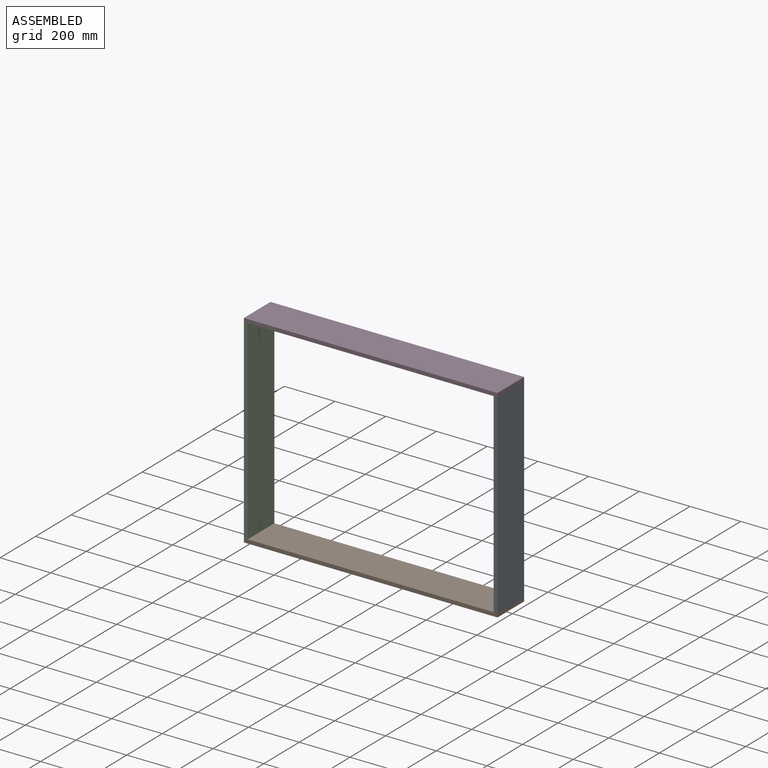
[diagram: assembled view]
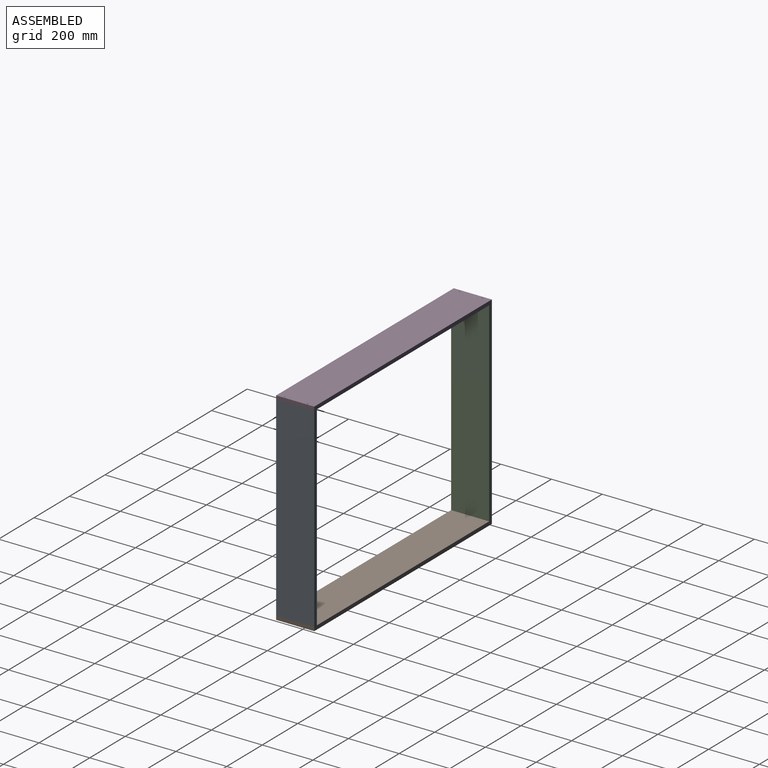
[diagram: assembled view, second angle]
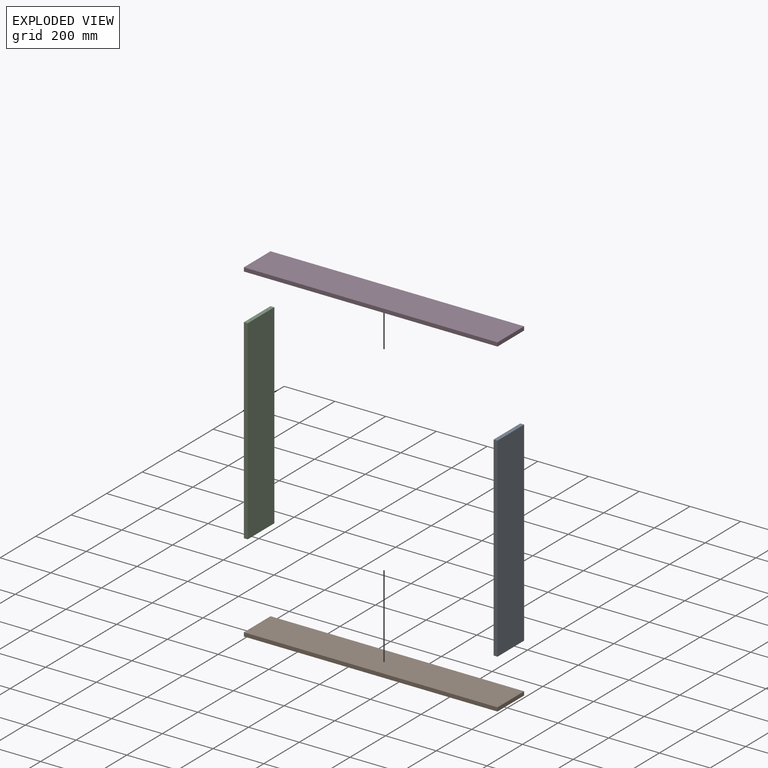
[diagram: exploded view]
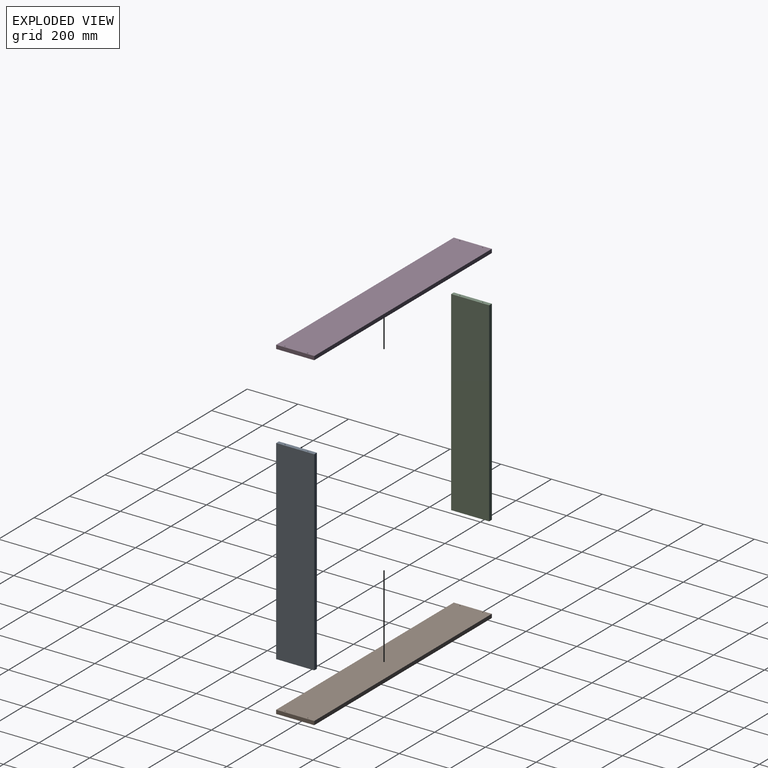
[diagram: exploded view, second angle]
ASSEMBLY  parts=4 mates=3
PART A: 14 faces, bbox 15x150x770 mm
  f0: plane 770x15mm, normal (0,-1,0), area 11550mm2, adj f1,f3,f4,f5
  f1: plane 150x15mm, normal (0,0,-1), area 2230.8mm2, adj f0,f2,f4,f5,f11,f13
  f2: plane 770x15mm, normal (0,1,0), area 11550mm2, adj f1,f3,f4,f5
  f3: plane 150x15mm, normal (0,0,1), area 2230.8mm2, adj f0,f2,f4,f5,f7,f9
  f4: plane 770x150mm, normal (1,0,0), area 115500mm2, adj f0,f1,f2,f3
  f5: plane 770x150mm, normal (-1,0,0), area 115500mm2, adj f0,f1,f2,f3
  f6: cone r=0mm half-angle=59deg, axis (0,0,1), area 11.2mm2, adj f7
  f7: cylinder r=1.75mm len=12mm, axis (0,0,1), area 131.9mm2, adj f3,f6
  f8: cone r=0mm half-angle=59deg, axis (0,0,1), area 11.2mm2, adj f9
  f9: cylinder r=1.75mm len=12mm, axis (0,0,1), area 131.9mm2, adj f3,f8
  f10: cone r=0mm half-angle=59deg, axis (0,0,-1), area 11.2mm2, adj f11
  f11: cylinder r=1.75mm len=12mm, axis (0,0,-1), area 131.9mm2, adj f1,f10
  f12: cone r=0mm half-angle=59deg, axis (0,0,-1), area 11.2mm2, adj f13
  f13: cylinder r=1.75mm len=12mm, axis (0,0,-1), area 131.9mm2, adj f1,f12
PART B: 14 faces, bbox 1000x150x15 mm
  f0: plane 150x15mm, normal (1,0,0), area 2250mm2, adj f1,f3,f4,f5
  f1: plane 1000x15mm, normal (0,1,0), area 15000mm2, adj f0,f2,f4,f5
  f2: plane 150x15mm, normal (-1,0,0), area 2250mm2, adj f1,f3,f4,f5
  f3: plane 1000x15mm, normal (0,-1,0), area 15000mm2, adj f0,f2,f4,f5
  f4: plane 1000x150mm, normal (0,0,1), area 149961.5mm2, adj f0,f1,f2,f3,f6,f8,f10,f12
  f5: plane 1000x150mm, normal (0,0,-1), area 149846.1mm2, adj f0,f1,f2,f3,f7,f9,f11,f13
  f6: cylinder r=1.75mm len=12.99mm, axis (0,0,-1), area 142.8mm2, adj f4,f7
  f7: cone r=1.75mm half-angle=41deg, axis (0,0,-1), area 44mm2, adj f5,f6
  f8: cylinder r=1.75mm len=12.99mm, axis (0,0,-1), area 142.8mm2, adj f4,f9
  f9: cone r=1.75mm half-angle=41deg, axis (0,0,-1), area 44mm2, adj f5,f8
  f10: cylinder r=1.75mm len=12.99mm, axis (0,0,-1), area 142.8mm2, adj f4,f11
  f11: cone r=1.75mm half-angle=41deg, axis (0,0,-1), area 44mm2, adj f5,f10
  f12: cylinder r=1.75mm len=12.99mm, axis (0,0,-1), area 142.8mm2, adj f4,f13
  f13: cone r=1.75mm half-angle=41deg, axis (0,0,-1), area 44mm2, adj f5,f12
PART C: same geometry as A
PART D: same geometry as B
PLACE A t=(599,0,0)mm
PLACE B t=(114,0,-400)mm
PLACE C t=(-386,0,0)mm
PLACE D rot(axis=(1,0,0),180deg) t=(114,0,400)mm
MATE fastened B.f10 <-> A.f8  axis (0,0,1) through (606.5,-45,-385)mm
MATE fastened D.f8 <-> A.f8  axis (0,0,-1) through (606.5,-45,385)mm
MATE fastened C.f8 <-> D.f12  axis (0,0,1) through (-378.5,-45,385)mm
